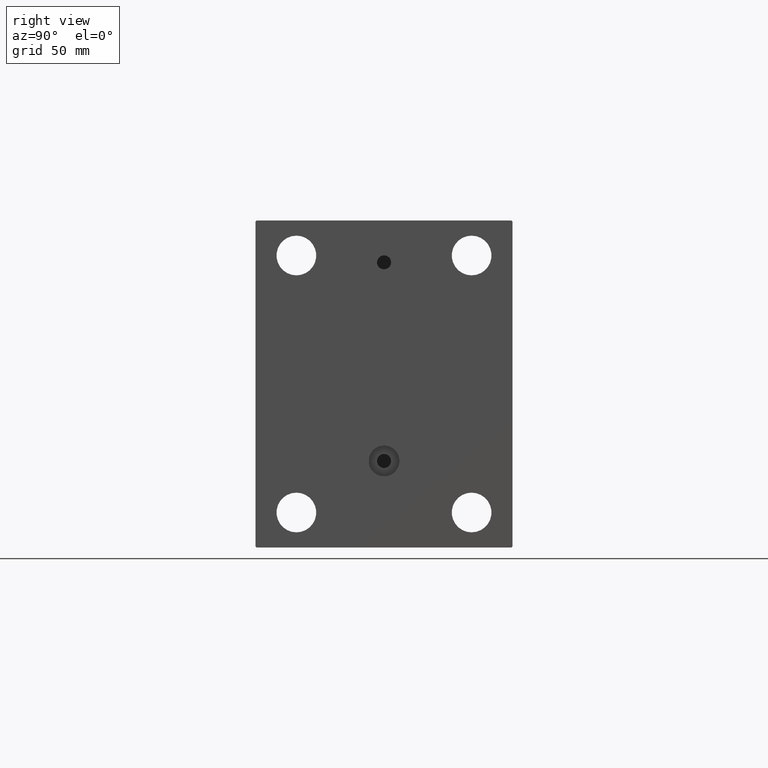
[diagram: clean part render]
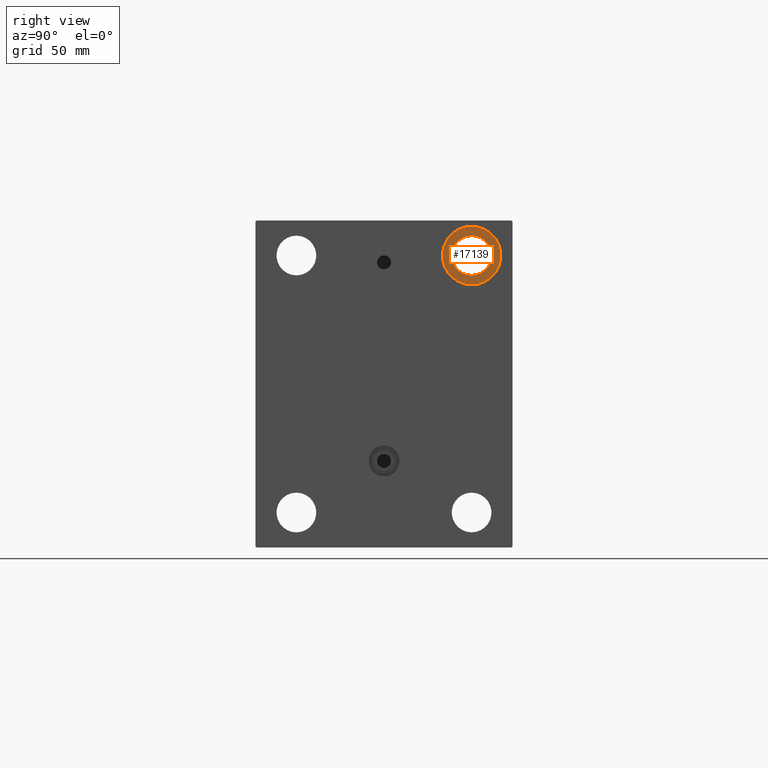
[diagram: same view with one face highlighted and labeled with its STEP entity id]
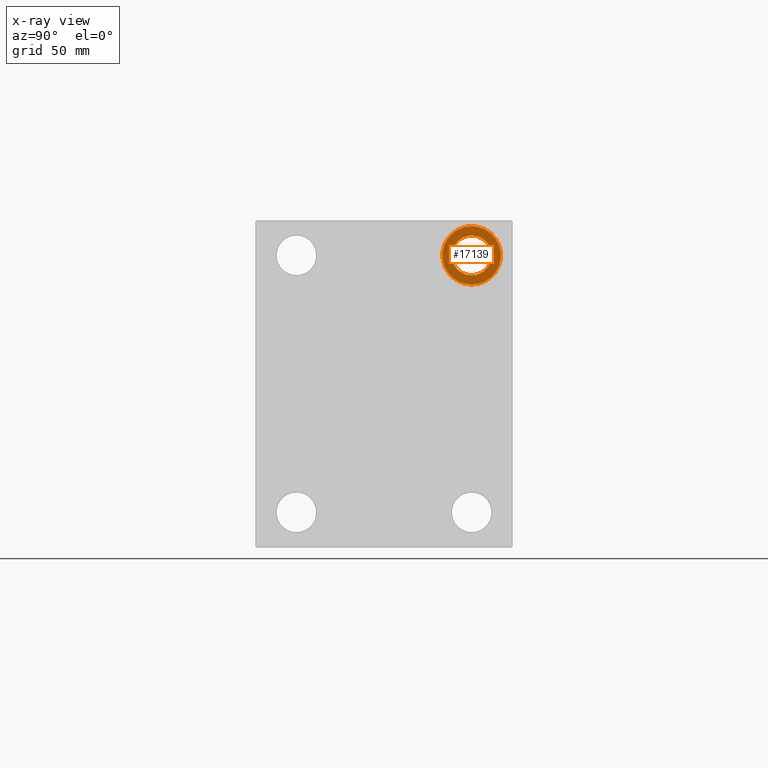
[diagram: x-ray of the same camera — body ghosted, the highlighted face saturated]
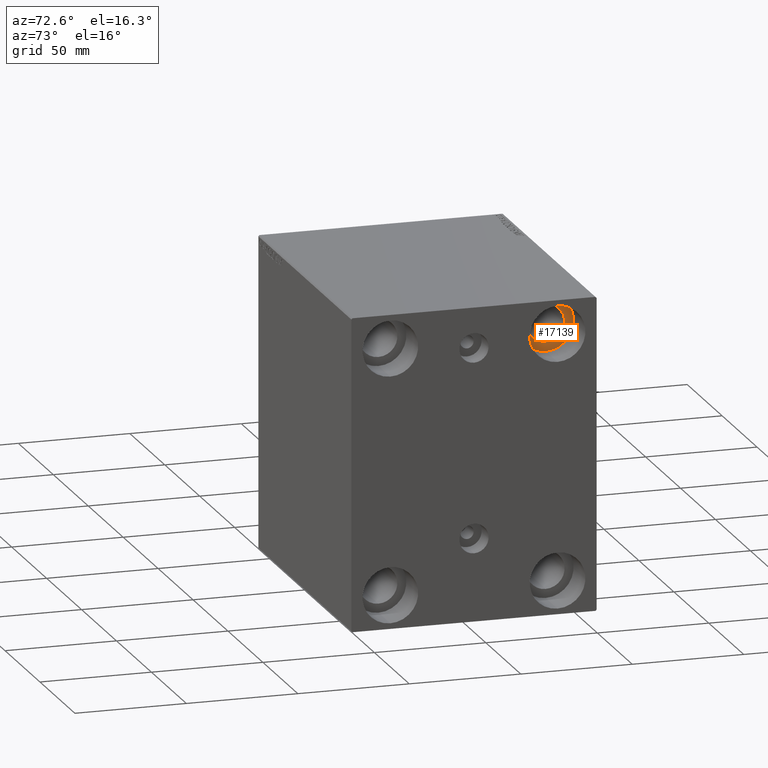
[diagram: same view with one face highlighted and labeled with its STEP entity id]
A machine part, right view. The second image highlights one B-rep face of the part: STEP entity #17139.
The next image is the same camera in x-ray: the body ghosted, the highlighted face saturated — about 0% of this face is hidden behind the body in this view.
A second angle (auxiliary view) of the same face is appended — the face is thin or edge-on in the first view.
In plain terms, the highlighted planar face has unit normal (1, 0, 0).
Its self-contained STEP definition (entity closure, byte-faithful):
#2714 = CARTESIAN_POINT ( 'NONE',  ( 116.0000000000000000, 37.50000000000000711, 42.50000000000000711 ) ) ;
#2830 = AXIS2_PLACEMENT_3D ( 'NONE', #31361, #10591, #32063 ) ;
#3878 = AXIS2_PLACEMENT_3D ( 'NONE', #8667, #19069, #8201 ) ;
#4191 = VERTEX_POINT ( 'NONE', #41078 ) ;
#4312 = CIRCLE ( 'NONE', #2830, 8.499999999999992895 ) ;
#5112 = EDGE_CURVE ( 'NONE', #11793, #4191, #4312, .T. ) ;
#8201 = DIRECTION ( 'NONE',  ( 0.000000000000000000, 0.000000000000000000, 1.000000000000000000 ) ) ;
#8296 = FACE_OUTER_BOUND ( 'NONE', #20858, .T. ) ;
#8528 = PLANE ( 'NONE',  #23249 ) ;
#8667 = CARTESIAN_POINT ( 'NONE',  ( 116.0000000000000000, 37.50000000000000711, 55.00000000000000711 ) ) ;
#10484 = CARTESIAN_POINT ( 'NONE',  ( 116.0000000000000000, 37.50000000000000711, 55.00000000000000711 ) ) ;
#10591 = DIRECTION ( 'NONE',  ( -1.000000000000000000, -0.000000000000000000, -0.000000000000000000 ) ) ;
#11793 = VERTEX_POINT ( 'NONE', #45781 ) ;
#12319 = CIRCLE ( 'NONE', #37954, 8.499999999999992895 ) ;
#14459 = ORIENTED_EDGE ( 'NONE', *, *, #27465, .F. ) ;
#16075 = DIRECTION ( 'NONE',  ( 1.000000000000000000, 0.000000000000000000, -0.000000000000000000 ) ) ;
#16253 = ORIENTED_EDGE ( 'NONE', *, *, #28845, .F. ) ;
#17139 = ADVANCED_FACE ( 'NONE', ( #8296, #37777 ), #8528, .T. ) ;
#17465 = CIRCLE ( 'NONE', #3878, 12.49999999999999645 ) ;
#17779 = EDGE_LOOP ( 'NONE', ( #35184, #44204 ) ) ;
#18764 = DIRECTION ( 'NONE',  ( 0.000000000000000000, 0.000000000000000000, -1.000000000000000000 ) ) ;
#19069 = DIRECTION ( 'NONE',  ( -1.000000000000000000, -0.000000000000000000, -0.000000000000000000 ) ) ;
#19511 = VERTEX_POINT ( 'NONE', #2714 ) ;
#20858 = EDGE_LOOP ( 'NONE', ( #14459, #16253 ) ) ;
#21936 = AXIS2_PLACEMENT_3D ( 'NONE', #10484, #24869, #39739 ) ;
#22074 = CARTESIAN_POINT ( 'NONE',  ( 116.0000000000000000, 37.50000000000000711, 55.00000000000000711 ) ) ;
#23249 = AXIS2_PLACEMENT_3D ( 'NONE', #33998, #16075, #43959 ) ;
#24869 = DIRECTION ( 'NONE',  ( -1.000000000000000000, -0.000000000000000000, -0.000000000000000000 ) ) ;
#27465 = EDGE_CURVE ( 'NONE', #19511, #29293, #42304, .T. ) ;
#28845 = EDGE_CURVE ( 'NONE', #29293, #19511, #17465, .T. ) ;
#29293 = VERTEX_POINT ( 'NONE', #35947 ) ;
#31361 = CARTESIAN_POINT ( 'NONE',  ( 116.0000000000000000, 37.50000000000000711, 55.00000000000000711 ) ) ;
#32063 = DIRECTION ( 'NONE',  ( 0.000000000000000000, 0.000000000000000000, -1.000000000000000000 ) ) ;
#33998 = CARTESIAN_POINT ( 'NONE',  ( 116.0000000000000000, 0.000000000000000000, 0.000000000000000000 ) ) ;
#35184 = ORIENTED_EDGE ( 'NONE', *, *, #38526, .T. ) ;
#35947 = CARTESIAN_POINT ( 'NONE',  ( 116.0000000000000000, 37.50000000000000711, 67.50000000000000000 ) ) ;
#36929 = DIRECTION ( 'NONE',  ( -1.000000000000000000, -0.000000000000000000, -0.000000000000000000 ) ) ;
#37777 = FACE_BOUND ( 'NONE', #17779, .T. ) ;
#37954 = AXIS2_PLACEMENT_3D ( 'NONE', #22074, #36929, #18764 ) ;
#38526 = EDGE_CURVE ( 'NONE', #4191, #11793, #12319, .T. ) ;
#39739 = DIRECTION ( 'NONE',  ( 0.000000000000000000, 0.000000000000000000, 1.000000000000000000 ) ) ;
#41078 = CARTESIAN_POINT ( 'NONE',  ( 116.0000000000000000, 37.50000000000000711, 63.50000000000000000 ) ) ;
#42304 = CIRCLE ( 'NONE', #21936, 12.49999999999999645 ) ;
#43959 = DIRECTION ( 'NONE',  ( 0.000000000000000000, 0.000000000000000000, 1.000000000000000000 ) ) ;
#44204 = ORIENTED_EDGE ( 'NONE', *, *, #5112, .T. ) ;
#45781 = CARTESIAN_POINT ( 'NONE',  ( 116.0000000000000000, 37.50000000000000711, 46.50000000000001421 ) ) ;